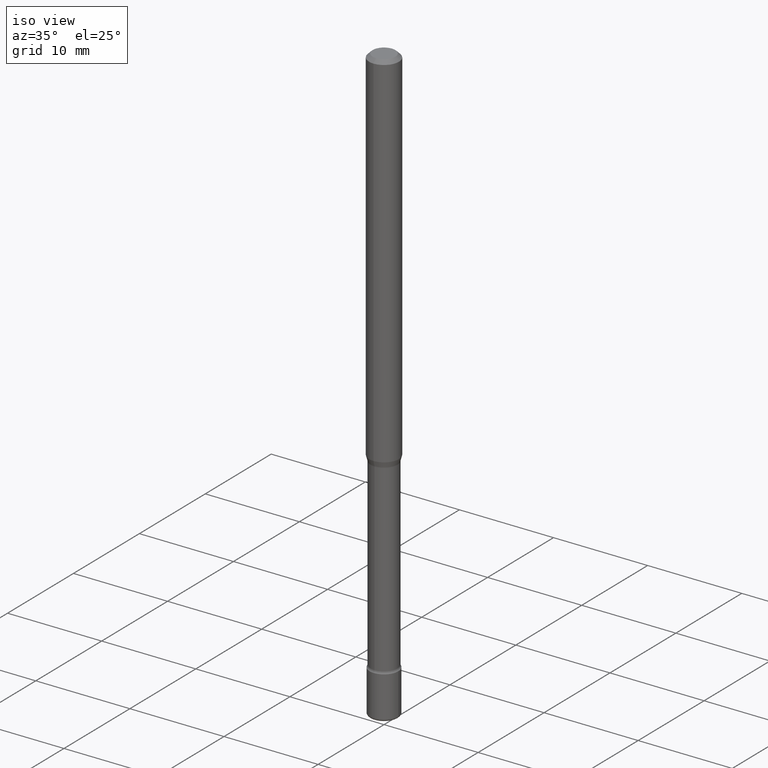
[diagram: clean part render]
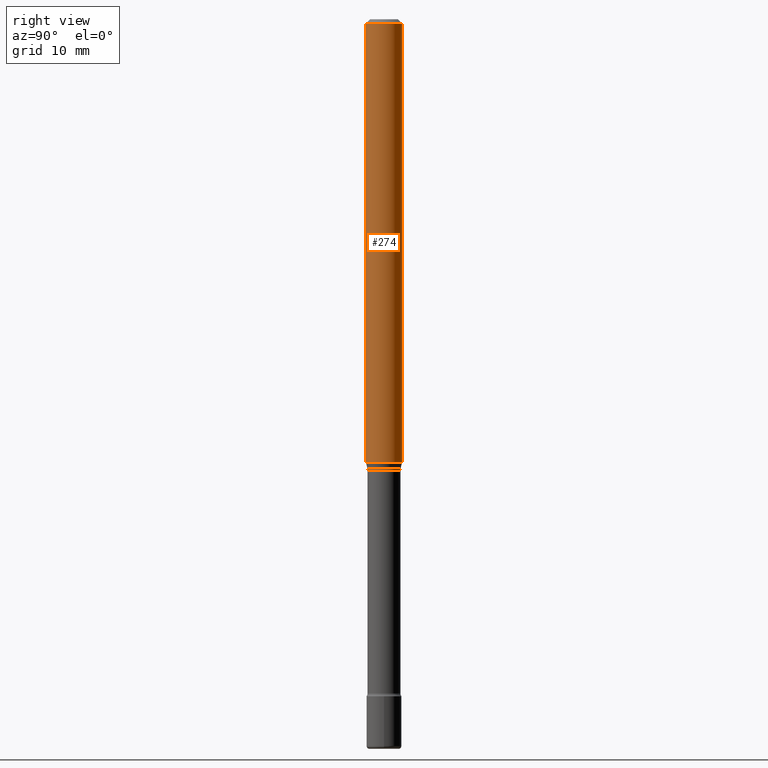
[diagram: tour spotlight — one face highlighted and labeled with its STEP entity id]
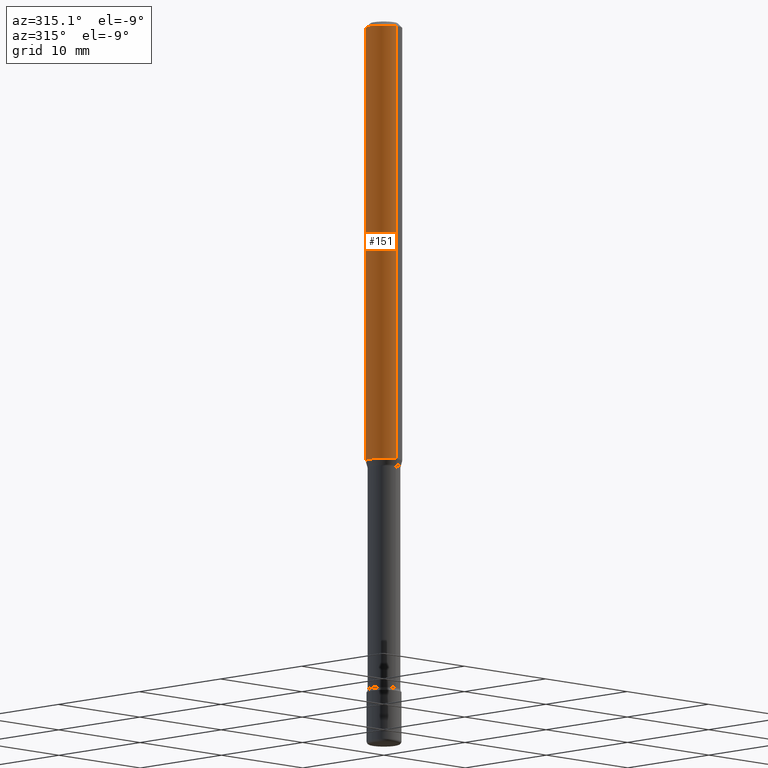
[diagram: tour spotlight — one face highlighted and labeled with its STEP entity id]
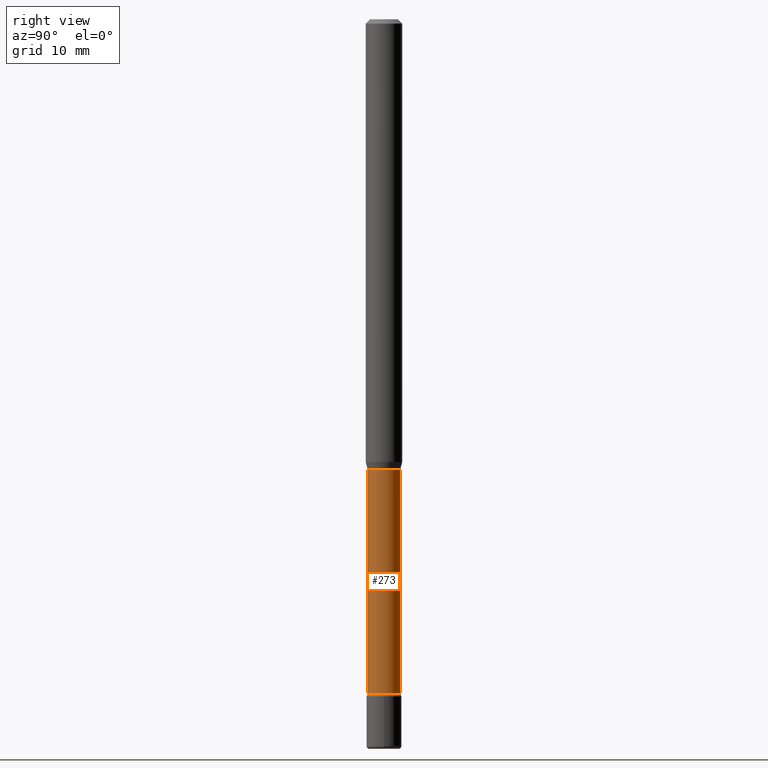
[diagram: tour spotlight — one face highlighted and labeled with its STEP entity id]
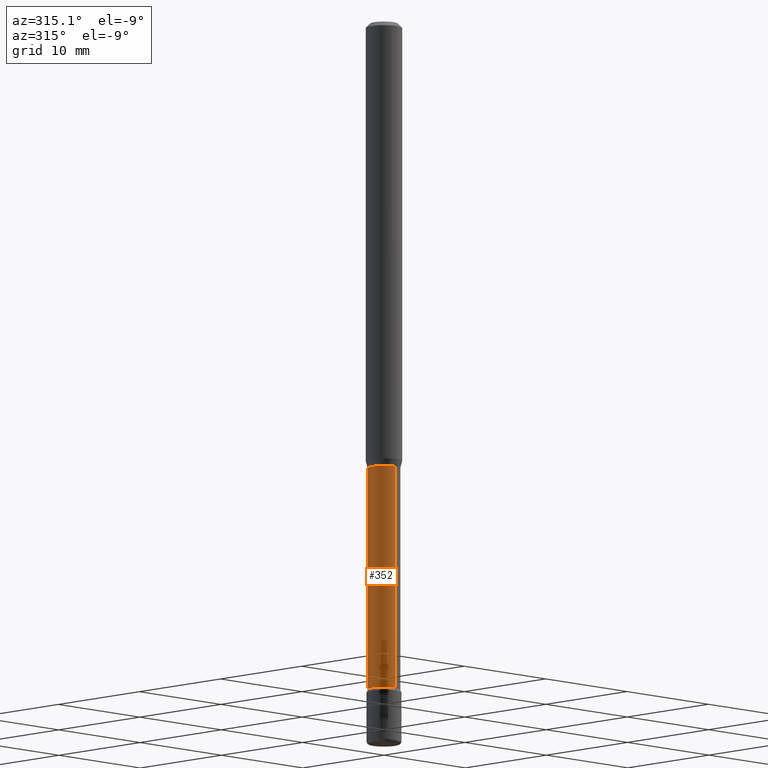
[diagram: tour spotlight — one face highlighted and labeled with its STEP entity id]
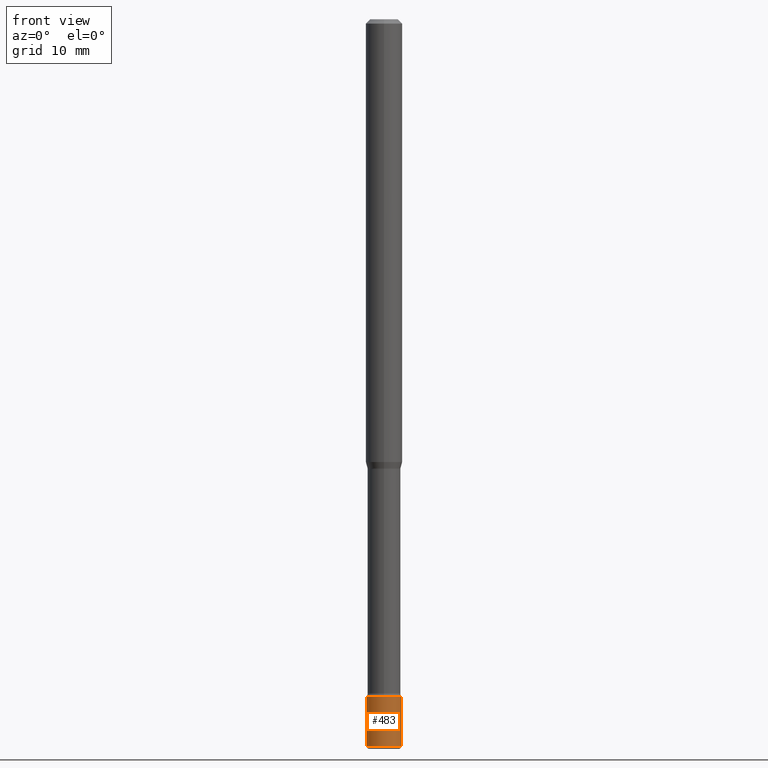
[diagram: tour spotlight — one face highlighted and labeled with its STEP entity id]
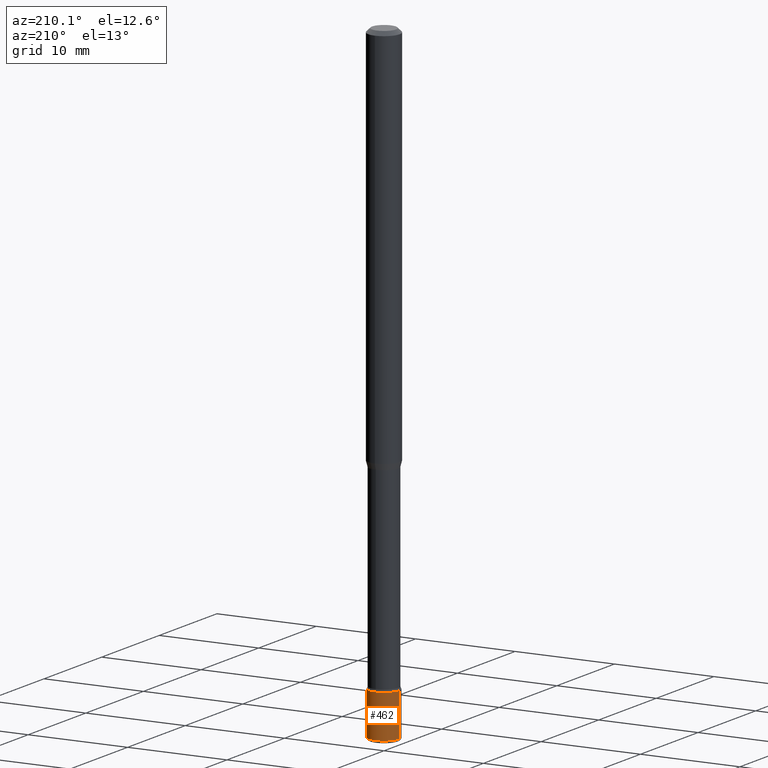
[diagram: tour spotlight — one face highlighted and labeled with its STEP entity id]
A machine part: a face-by-face anatomy tour. The part has 20 B-rep faces; the first image is the clean iso view, then the 6 largest visible faces are spotlighted one at a time (largest first), each with its STEP entity span.

Face 1 — right view, entity #274. In plain terms, the highlighted cylindrical surface (edge-blend (fillet) strip) has radius 1.5875 mm, axis along (-0, 0, 1).
Definition (entity closure, byte-faithful):
#4 = VECTOR ( 'NONE', #547, 39.37007874015748143 ) ;
#10 = DIRECTION ( 'NONE',  ( -6.982962677686265922E-15, -1.000000000000000000, 4.370956789862821150E-15 ) ) ;
#41 = AXIS2_PLACEMENT_3D ( 'NONE', #544, #149, #10 ) ;
#79 = VERTEX_POINT ( 'NONE', #398 ) ;
#88 = DIRECTION ( 'NONE',  ( -2.445374119236681714E-29, 3.491616935942579411E-15, 1.000000000000000000 ) ) ;
#135 = CARTESIAN_POINT ( 'NONE',  ( -4.364351673553916201E-16, -0.06250000000000000000, 6.962994573876572271E-16 ) ) ;
#149 = DIRECTION ( 'NONE',  ( -2.445374119236681714E-29, 3.491616935942579411E-15, 1.000000000000000000 ) ) ;
#168 = DIRECTION ( 'NONE',  ( -6.982962677686265922E-15, -1.000000000000000000, 3.491616935942578228E-15 ) ) ;
#183 = CARTESIAN_POINT ( 'NONE',  ( -4.364351673553544450E-16, -0.06250000000000527356, -1.517234490073829489 ) ) ;
#190 = DIRECTION ( 'NONE',  ( -2.445374119236681994E-29, 3.491616935942579411E-15, 1.000000000000000000 ) ) ;
#204 = ORIENTED_EDGE ( 'NONE', *, *, #416, .F. ) ;
#206 = ORIENTED_EDGE ( 'NONE', *, *, #566, .F. ) ;
#208 = VERTEX_POINT ( 'NONE', #183 ) ;
#220 = CARTESIAN_POINT ( 'NONE',  ( 4.440892098500997912E-16, 0.06249999999999472644, -1.517234490073829933 ) ) ;
#225 = AXIS2_PLACEMENT_3D ( 'NONE', #445, #88, #168 ) ;
#274 = ADVANCED_FACE ( 'NONE', ( #478 ), #534, .T. ) ;
#275 = LINE ( 'NONE', #409, #4 ) ;
#297 = CARTESIAN_POINT ( 'NONE',  ( 4.440892098500998898E-16, 0.06249999999999993755, -0.01500000000000024578 ) ) ;
#331 = CIRCLE ( 'NONE', #41, 0.06250000000000000000 ) ;
#340 = EDGE_CURVE ( 'NONE', #208, #381, #331, .T. ) ;
#341 = DIRECTION ( 'NONE',  ( -2.445374119236681714E-29, 3.491616935942579411E-15, 1.000000000000000000 ) ) ;
#361 = CARTESIAN_POINT ( 'NONE',  ( 3.668061178855029262E-31, -5.237425403913879570E-17, -0.01500000000000002720 ) ) ;
#372 = LINE ( 'NONE', #135, #380 ) ;
#373 = ORIENTED_EDGE ( 'NONE', *, *, #518, .T. ) ;
#380 = VECTOR ( 'NONE', #190, 39.37007874015748143 ) ;
#381 = VERTEX_POINT ( 'NONE', #220 ) ;
#387 = DIRECTION ( 'NONE',  ( -6.982962677686265922E-15, -1.000000000000000000, 3.483106191921935554E-15 ) ) ;
#396 = EDGE_LOOP ( 'NONE', ( #511, #373, #204, #206 ) ) ;
#398 = CARTESIAN_POINT ( 'NONE',  ( -4.364351673553912750E-16, -0.06250000000000005551, -0.01499999999999981036 ) ) ;
#409 = CARTESIAN_POINT ( 'NONE',  ( 4.440892098500625669E-16, 0.06250000000000000000, 2.598473403948348500E-16 ) ) ;
#416 = EDGE_CURVE ( 'NONE', #79, #424, #569, .T. ) ;
#424 = VERTEX_POINT ( 'NONE', #297 ) ;
#445 = CARTESIAN_POINT ( 'NONE',  ( -1.169113584055446105E-44, 1.669184350826100908E-30, 4.780733988912460139E-16 ) ) ;
#478 = FACE_OUTER_BOUND ( 'NONE', #396, .T. ) ;
#511 = ORIENTED_EDGE ( 'NONE', *, *, #340, .T. ) ;
#518 = EDGE_CURVE ( 'NONE', #381, #424, #275, .T. ) ;
#534 = CYLINDRICAL_SURFACE ( 'NONE', #225, 0.06250000000000000000 ) ;
#544 = CARTESIAN_POINT ( 'NONE',  ( 3.710205954839807473E-29, -5.297601641337987414E-15, -1.517234490073829711 ) ) ;
#547 = DIRECTION ( 'NONE',  ( -2.445374119236681994E-29, 3.491616935942579411E-15, 1.000000000000000000 ) ) ;
#561 = AXIS2_PLACEMENT_3D ( 'NONE', #361, #341, #387 ) ;
#566 = EDGE_CURVE ( 'NONE', #208, #79, #372, .T. ) ;
#569 = CIRCLE ( 'NONE', #561, 0.06250000000000000000 ) ;

Face 2 — auxiliary view, entity #151. In plain terms, the highlighted cylindrical surface (edge-blend (fillet) strip) has radius 1.5875 mm, axis along (-0, 0, 1).
Definition (entity closure, byte-faithful):
#4 = VECTOR ( 'NONE', #547, 39.37007874015748143 ) ;
#28 = EDGE_CURVE ( 'NONE', #424, #79, #127, .T. ) ;
#33 = AXIS2_PLACEMENT_3D ( 'NONE', #138, #276, #94 ) ;
#79 = VERTEX_POINT ( 'NONE', #398 ) ;
#93 = ORIENTED_EDGE ( 'NONE', *, *, #28, .F. ) ;
#94 = DIRECTION ( 'NONE',  ( -6.982962677686265922E-15, -1.000000000000000000, 3.491616935942578228E-15 ) ) ;
#95 = CARTESIAN_POINT ( 'NONE',  ( 3.710205954839807473E-29, -5.297601641337987414E-15, -1.517234490073829711 ) ) ;
#102 = DIRECTION ( 'NONE',  ( -6.982962677686265922E-15, -1.000000000000000000, 4.370956789862821150E-15 ) ) ;
#127 = CIRCLE ( 'NONE', #189, 0.06250000000000000000 ) ;
#135 = CARTESIAN_POINT ( 'NONE',  ( -4.364351673553916201E-16, -0.06250000000000000000, 6.962994573876572271E-16 ) ) ;
#138 = CARTESIAN_POINT ( 'NONE',  ( -1.169113584055446105E-44, 1.669184350826100908E-30, 4.780733988912460139E-16 ) ) ;
#145 = CYLINDRICAL_SURFACE ( 'NONE', #33, 0.06250000000000000000 ) ;
#151 = ADVANCED_FACE ( 'NONE', ( #460 ), #145, .T. ) ;
#156 = AXIS2_PLACEMENT_3D ( 'NONE', #95, #279, #102 ) ;
#183 = CARTESIAN_POINT ( 'NONE',  ( -4.364351673553544450E-16, -0.06250000000000527356, -1.517234490073829489 ) ) ;
#189 = AXIS2_PLACEMENT_3D ( 'NONE', #360, #217, #269 ) ;
#190 = DIRECTION ( 'NONE',  ( -2.445374119236681994E-29, 3.491616935942579411E-15, 1.000000000000000000 ) ) ;
#199 = ORIENTED_EDGE ( 'NONE', *, *, #518, .F. ) ;
#208 = VERTEX_POINT ( 'NONE', #183 ) ;
#217 = DIRECTION ( 'NONE',  ( -2.445374119236681714E-29, 3.491616935942579411E-15, 1.000000000000000000 ) ) ;
#220 = CARTESIAN_POINT ( 'NONE',  ( 4.440892098500997912E-16, 0.06249999999999472644, -1.517234490073829933 ) ) ;
#269 = DIRECTION ( 'NONE',  ( -6.982962677686265922E-15, -1.000000000000000000, 3.483106191921935554E-15 ) ) ;
#275 = LINE ( 'NONE', #409, #4 ) ;
#276 = DIRECTION ( 'NONE',  ( -2.445374119236681714E-29, 3.491616935942579411E-15, 1.000000000000000000 ) ) ;
#279 = DIRECTION ( 'NONE',  ( -2.445374119236681714E-29, 3.491616935942579411E-15, 1.000000000000000000 ) ) ;
#297 = CARTESIAN_POINT ( 'NONE',  ( 4.440892098500998898E-16, 0.06249999999999993755, -0.01500000000000024578 ) ) ;
#334 = ORIENTED_EDGE ( 'NONE', *, *, #566, .T. ) ;
#360 = CARTESIAN_POINT ( 'NONE',  ( 3.668061178855029262E-31, -5.237425403913879570E-17, -0.01500000000000002720 ) ) ;
#372 = LINE ( 'NONE', #135, #380 ) ;
#380 = VECTOR ( 'NONE', #190, 39.37007874015748143 ) ;
#381 = VERTEX_POINT ( 'NONE', #220 ) ;
#398 = CARTESIAN_POINT ( 'NONE',  ( -4.364351673553912750E-16, -0.06250000000000005551, -0.01499999999999981036 ) ) ;
#402 = CIRCLE ( 'NONE', #156, 0.06250000000000000000 ) ;
#409 = CARTESIAN_POINT ( 'NONE',  ( 4.440892098500625669E-16, 0.06250000000000000000, 2.598473403948348500E-16 ) ) ;
#418 = ORIENTED_EDGE ( 'NONE', *, *, #524, .T. ) ;
#424 = VERTEX_POINT ( 'NONE', #297 ) ;
#460 = FACE_OUTER_BOUND ( 'NONE', #473, .T. ) ;
#473 = EDGE_LOOP ( 'NONE', ( #199, #418, #334, #93 ) ) ;
#518 = EDGE_CURVE ( 'NONE', #381, #424, #275, .T. ) ;
#524 = EDGE_CURVE ( 'NONE', #381, #208, #402, .T. ) ;
#547 = DIRECTION ( 'NONE',  ( -2.445374119236681994E-29, 3.491616935942579411E-15, 1.000000000000000000 ) ) ;
#566 = EDGE_CURVE ( 'NONE', #208, #79, #372, .T. ) ;

Face 3 — right view, entity #273. In plain terms, the highlighted cylindrical surface (edge-blend (fillet) strip) has radius 1.4326 mm, axis along (-0, 0, 1).
Definition (entity closure, byte-faithful):
#25 = ORIENTED_EDGE ( 'NONE', *, *, #74, .F. ) ;
#26 = DIRECTION ( 'NONE',  ( -6.982962677686265133E-15, -1.000000000000000000, 3.491616935942579411E-15 ) ) ;
#49 = CARTESIAN_POINT ( 'NONE',  ( 4.007461029686965452E-16, 0.05640000000000001262, 2.811462037040845346E-16 ) ) ;
#58 = CARTESIAN_POINT ( 'NONE',  ( 4.135358722124349706E-16, 0.05639999999999196351, -2.310251153914437250 ) ) ;
#66 = EDGE_LOOP ( 'NONE', ( #215, #295, #25, #508 ) ) ;
#74 = EDGE_CURVE ( 'NONE', #516, #300, #479, .T. ) ;
#97 = LINE ( 'NONE', #49, #535 ) ;
#112 = VERTEX_POINT ( 'NONE', #520 ) ;
#125 = DIRECTION ( 'NONE',  ( -2.445374119236681994E-29, 3.491616935942579411E-15, 1.000000000000000000 ) ) ;
#143 = CARTESIAN_POINT ( 'NONE',  ( 5.649428380719043834E-29, -8.066512055288535170E-15, -2.310251153914436806 ) ) ;
#158 = FACE_OUTER_BOUND ( 'NONE', #66, .T. ) ;
#159 = EDGE_CURVE ( 'NONE', #112, #160, #305, .T. ) ;
#160 = VERTEX_POINT ( 'NONE', #58 ) ;
#180 = CARTESIAN_POINT ( 'NONE',  ( -3.938390950215054539E-16, -0.05640000000000001262, 6.750005940784075426E-16 ) ) ;
#185 = DIRECTION ( 'NONE',  ( -6.982962677686265922E-15, -1.000000000000000000, 4.843702116425996063E-15 ) ) ;
#205 = CARTESIAN_POINT ( 'NONE',  ( -1.169113584055446105E-44, 1.669184350826100908E-30, 4.780733988912460139E-16 ) ) ;
#215 = ORIENTED_EDGE ( 'NONE', *, *, #159, .T. ) ;
#226 = DIRECTION ( 'NONE',  ( -2.445374119236681994E-29, 3.491616935942579411E-15, 1.000000000000000000 ) ) ;
#233 = CARTESIAN_POINT ( 'NONE',  ( -3.938390950214675886E-16, -0.05640000000000538333, -1.541974787463810781 ) ) ;
#273 = ADVANCED_FACE ( 'NONE', ( #158 ), #427, .T. ) ;
#280 = EDGE_CURVE ( 'NONE', #112, #516, #394, .T. ) ;
#295 = ORIENTED_EDGE ( 'NONE', *, *, #554, .T. ) ;
#300 = VERTEX_POINT ( 'NONE', #413 ) ;
#301 = AXIS2_PLACEMENT_3D ( 'NONE', #143, #533, #185 ) ;
#305 = CIRCLE ( 'NONE', #301, 0.05640000000000002650 ) ;
#379 = VECTOR ( 'NONE', #125, 39.37007874015748143 ) ;
#382 = DIRECTION ( 'NONE',  ( -2.445374119236681714E-29, 3.491616935942579411E-15, 1.000000000000000000 ) ) ;
#394 = LINE ( 'NONE', #180, #379 ) ;
#413 = CARTESIAN_POINT ( 'NONE',  ( 4.007461029687530474E-16, 0.05639999999999460029, -1.541974787463811225 ) ) ;
#427 = CYLINDRICAL_SURFACE ( 'NONE', #455, 0.05640000000000001262 ) ;
#451 = CARTESIAN_POINT ( 'NONE',  ( 3.770705237779486267E-29, -5.383985282705101280E-15, -1.541974787463811003 ) ) ;
#455 = AXIS2_PLACEMENT_3D ( 'NONE', #205, #382, #26 ) ;
#479 = CIRCLE ( 'NONE', #562, 0.05639999999999999181 ) ;
#484 = DIRECTION ( 'NONE',  ( -6.982962677686265922E-15, -1.000000000000000000, 4.843702116425999219E-15 ) ) ;
#508 = ORIENTED_EDGE ( 'NONE', *, *, #280, .F. ) ;
#516 = VERTEX_POINT ( 'NONE', #233 ) ;
#520 = CARTESIAN_POINT ( 'NONE',  ( -3.938390950214490997E-16, -0.05640000000000809643, -2.310251153914436806 ) ) ;
#522 = DIRECTION ( 'NONE',  ( -2.445374119236681714E-29, 3.491616935942579411E-15, 1.000000000000000000 ) ) ;
#533 = DIRECTION ( 'NONE',  ( -2.445374119236681714E-29, 3.491616935942579411E-15, 1.000000000000000000 ) ) ;
#535 = VECTOR ( 'NONE', #226, 39.37007874015748143 ) ;
#554 = EDGE_CURVE ( 'NONE', #160, #300, #97, .T. ) ;
#562 = AXIS2_PLACEMENT_3D ( 'NONE', #451, #522, #484 ) ;

Face 4 — auxiliary view, entity #352. In plain terms, the highlighted cylindrical surface (edge-blend (fillet) strip) has radius 1.4326 mm, axis along (-0, 0, 1).
Definition (entity closure, byte-faithful):
#9 = DIRECTION ( 'NONE',  ( -2.445374119236681714E-29, 3.491616935942579411E-15, 1.000000000000000000 ) ) ;
#49 = CARTESIAN_POINT ( 'NONE',  ( 4.007461029686965452E-16, 0.05640000000000001262, 2.811462037040845346E-16 ) ) ;
#58 = CARTESIAN_POINT ( 'NONE',  ( 4.135358722124349706E-16, 0.05639999999999196351, -2.310251153914437250 ) ) ;
#59 = CYLINDRICAL_SURFACE ( 'NONE', #422, 0.05640000000000001262 ) ;
#97 = LINE ( 'NONE', #49, #535 ) ;
#100 = CIRCLE ( 'NONE', #285, 0.05639999999999999181 ) ;
#104 = DIRECTION ( 'NONE',  ( -6.982962677686265922E-15, -1.000000000000000000, 4.843702116425999219E-15 ) ) ;
#112 = VERTEX_POINT ( 'NONE', #520 ) ;
#125 = DIRECTION ( 'NONE',  ( -2.445374119236681994E-29, 3.491616935942579411E-15, 1.000000000000000000 ) ) ;
#144 = DIRECTION ( 'NONE',  ( -6.982962677686265133E-15, -1.000000000000000000, 3.491616935942579411E-15 ) ) ;
#160 = VERTEX_POINT ( 'NONE', #58 ) ;
#180 = CARTESIAN_POINT ( 'NONE',  ( -3.938390950215054539E-16, -0.05640000000000001262, 6.750005940784075426E-16 ) ) ;
#209 = CIRCLE ( 'NONE', #492, 0.05640000000000002650 ) ;
#226 = DIRECTION ( 'NONE',  ( -2.445374119236681994E-29, 3.491616935942579411E-15, 1.000000000000000000 ) ) ;
#233 = CARTESIAN_POINT ( 'NONE',  ( -3.938390950214675886E-16, -0.05640000000000538333, -1.541974787463810781 ) ) ;
#236 = CARTESIAN_POINT ( 'NONE',  ( -1.169113584055446105E-44, 1.669184350826100908E-30, 4.780733988912460139E-16 ) ) ;
#265 = DIRECTION ( 'NONE',  ( -6.982962677686265922E-15, -1.000000000000000000, 4.843702116425996063E-15 ) ) ;
#267 = ORIENTED_EDGE ( 'NONE', *, *, #554, .F. ) ;
#280 = EDGE_CURVE ( 'NONE', #112, #516, #394, .T. ) ;
#281 = DIRECTION ( 'NONE',  ( -2.445374119236681714E-29, 3.491616935942579411E-15, 1.000000000000000000 ) ) ;
#283 = FACE_OUTER_BOUND ( 'NONE', #336, .T. ) ;
#285 = AXIS2_PLACEMENT_3D ( 'NONE', #406, #281, #104 ) ;
#296 = ORIENTED_EDGE ( 'NONE', *, *, #320, .F. ) ;
#300 = VERTEX_POINT ( 'NONE', #413 ) ;
#320 = EDGE_CURVE ( 'NONE', #300, #516, #100, .T. ) ;
#327 = ORIENTED_EDGE ( 'NONE', *, *, #375, .T. ) ;
#336 = EDGE_LOOP ( 'NONE', ( #267, #327, #338, #296 ) ) ;
#338 = ORIENTED_EDGE ( 'NONE', *, *, #280, .T. ) ;
#352 = ADVANCED_FACE ( 'NONE', ( #283 ), #59, .T. ) ;
#366 = CARTESIAN_POINT ( 'NONE',  ( 5.649428380719043834E-29, -8.066512055288535170E-15, -2.310251153914436806 ) ) ;
#375 = EDGE_CURVE ( 'NONE', #160, #112, #209, .T. ) ;
#379 = VECTOR ( 'NONE', #125, 39.37007874015748143 ) ;
#394 = LINE ( 'NONE', #180, #379 ) ;
#406 = CARTESIAN_POINT ( 'NONE',  ( 3.770705237779486267E-29, -5.383985282705101280E-15, -1.541974787463811003 ) ) ;
#413 = CARTESIAN_POINT ( 'NONE',  ( 4.007461029687530474E-16, 0.05639999999999460029, -1.541974787463811225 ) ) ;
#422 = AXIS2_PLACEMENT_3D ( 'NONE', #236, #9, #144 ) ;
#482 = DIRECTION ( 'NONE',  ( -2.445374119236681714E-29, 3.491616935942579411E-15, 1.000000000000000000 ) ) ;
#492 = AXIS2_PLACEMENT_3D ( 'NONE', #366, #482, #265 ) ;
#516 = VERTEX_POINT ( 'NONE', #233 ) ;
#520 = CARTESIAN_POINT ( 'NONE',  ( -3.938390950214490997E-16, -0.05640000000000809643, -2.310251153914436806 ) ) ;
#535 = VECTOR ( 'NONE', #226, 39.37007874015748143 ) ;
#554 = EDGE_CURVE ( 'NONE', #160, #300, #97, .T. ) ;

Face 5 — front view, entity #483. In plain terms, the highlighted cylindrical surface (edge-blend (fillet) strip) has radius 1.524 mm, axis along (-0, 0, 1).
Definition (entity closure, byte-faithful):
#2 = EDGE_CURVE ( 'NONE', #443, #77, #262, .T. ) ;
#13 = CYLINDRICAL_SURFACE ( 'NONE', #268, 0.05999999999999999778 ) ;
#23 = AXIS2_PLACEMENT_3D ( 'NONE', #277, #459, #491 ) ;
#36 = CARTESIAN_POINT ( 'NONE',  ( 5.673487630349517039E-29, -8.100236706116098414E-15, -2.320000000000000284 ) ) ;
#46 = EDGE_CURVE ( 'NONE', #77, #392, #176, .T. ) ;
#76 = CARTESIAN_POINT ( 'NONE',  ( 0.06000000000000004635, -9.112766294380608350E-15, -2.489999999999999769 ) ) ;
#77 = VERTEX_POINT ( 'NONE', #430 ) ;
#114 = ORIENTED_EDGE ( 'NONE', *, *, #214, .T. ) ;
#133 = CARTESIAN_POINT ( 'NONE',  ( -0.06000000000000004635, -8.267462892263371226E-15, -2.489999999999999769 ) ) ;
#141 = VECTOR ( 'NONE', #564, 39.37007874015748143 ) ;
#173 = DIRECTION ( 'NONE',  ( -2.445468806185136597E-29, 3.491481338843145583E-15, 1.000000000000000000 ) ) ;
#175 = CARTESIAN_POINT ( 'NONE',  ( 0.05999999999999999778, -8.519214466777275048E-15, -2.320000000000000284 ) ) ;
#176 = CIRCLE ( 'NONE', #500, 0.05999999999999999778 ) ;
#214 = EDGE_CURVE ( 'NONE', #253, #392, #234, .T. ) ;
#222 = DIRECTION ( 'NONE',  ( -2.445468806185136877E-29, 3.491481338843145188E-15, 1.000000000000000000 ) ) ;
#227 = VECTOR ( 'NONE', #222, 39.37007874015748143 ) ;
#234 = LINE ( 'NONE', #536, #227 ) ;
#253 = VERTEX_POINT ( 'NONE', #76 ) ;
#260 = EDGE_LOOP ( 'NONE', ( #448, #515, #114, #374 ) ) ;
#262 = LINE ( 'NONE', #531, #141 ) ;
#268 = AXIS2_PLACEMENT_3D ( 'NONE', #431, #486, #542 ) ;
#277 = CARTESIAN_POINT ( 'NONE',  ( 6.089217327400989947E-29, -8.693788533719431716E-15, -2.489999999999999769 ) ) ;
#278 = CIRCLE ( 'NONE', #23, 0.05999999999999999778 ) ;
#323 = FACE_OUTER_BOUND ( 'NONE', #260, .T. ) ;
#374 = ORIENTED_EDGE ( 'NONE', *, *, #46, .F. ) ;
#392 = VERTEX_POINT ( 'NONE', #175 ) ;
#430 = CARTESIAN_POINT ( 'NONE',  ( -0.05999999999999999778, -7.970686978461704575E-15, -2.320000000000000284 ) ) ;
#431 = CARTESIAN_POINT ( 'NONE',  ( 0.000000000000000000, 0.000000000000000000, 0.000000000000000000 ) ) ;
#443 = VERTEX_POINT ( 'NONE', #133 ) ;
#448 = ORIENTED_EDGE ( 'NONE', *, *, #2, .F. ) ;
#459 = DIRECTION ( 'NONE',  ( -2.445468806185136597E-29, 3.491481338843145583E-15, 1.000000000000000000 ) ) ;
#483 = ADVANCED_FACE ( 'NONE', ( #323 ), #13, .T. ) ;
#486 = DIRECTION ( 'NONE',  ( -2.445468806185136597E-29, 3.491481338843145583E-15, 1.000000000000000000 ) ) ;
#491 = DIRECTION ( 'NONE',  ( 1.000000000000000000, -6.982962677686251722E-15, 0.000000000000000000 ) ) ;
#500 = AXIS2_PLACEMENT_3D ( 'NONE', #36, #173, #571 ) ;
#515 = ORIENTED_EDGE ( 'NONE', *, *, #537, .T. ) ;
#531 = CARTESIAN_POINT ( 'NONE',  ( -0.05999999999999999778, 4.263256414560600957E-16, -2.951361054152943413E-30 ) ) ;
#536 = CARTESIAN_POINT ( 'NONE',  ( 0.05999999999999999778, -4.189777606611760421E-16, 2.925706065477561756E-30 ) ) ;
#537 = EDGE_CURVE ( 'NONE', #443, #253, #278, .T. ) ;
#542 = DIRECTION ( 'NONE',  ( 1.000000000000000000, -6.982962677686267499E-15, 4.876176775795936353E-29 ) ) ;
#564 = DIRECTION ( 'NONE',  ( -2.445468806185136877E-29, 3.491481338843145188E-15, 1.000000000000000000 ) ) ;
#571 = DIRECTION ( 'NONE',  ( 1.000000000000000000, -6.982962677686268288E-15, 0.000000000000000000 ) ) ;

Face 6 — auxiliary view, entity #462. In plain terms, the highlighted cylindrical surface (edge-blend (fillet) strip) has radius 1.524 mm, axis along (-0, 0, 1).
Definition (entity closure, byte-faithful):
#2 = EDGE_CURVE ( 'NONE', #443, #77, #262, .T. ) ;
#76 = CARTESIAN_POINT ( 'NONE',  ( 0.06000000000000004635, -9.112766294380608350E-15, -2.489999999999999769 ) ) ;
#77 = VERTEX_POINT ( 'NONE', #430 ) ;
#82 = FACE_OUTER_BOUND ( 'NONE', #476, .T. ) ;
#86 = EDGE_CURVE ( 'NONE', #253, #443, #248, .T. ) ;
#96 = DIRECTION ( 'NONE',  ( -2.445468806185136597E-29, 3.491481338843145583E-15, 1.000000000000000000 ) ) ;
#132 = CARTESIAN_POINT ( 'NONE',  ( 6.089217327400989947E-29, -8.693788533719431716E-15, -2.489999999999999769 ) ) ;
#133 = CARTESIAN_POINT ( 'NONE',  ( -0.06000000000000004635, -8.267462892263371226E-15, -2.489999999999999769 ) ) ;
#141 = VECTOR ( 'NONE', #564, 39.37007874015748143 ) ;
#174 = DIRECTION ( 'NONE',  ( -2.445468806185136597E-29, 3.491481338843145583E-15, 1.000000000000000000 ) ) ;
#175 = CARTESIAN_POINT ( 'NONE',  ( 0.05999999999999999778, -8.519214466777275048E-15, -2.320000000000000284 ) ) ;
#198 = ORIENTED_EDGE ( 'NONE', *, *, #86, .T. ) ;
#214 = EDGE_CURVE ( 'NONE', #253, #392, #234, .T. ) ;
#222 = DIRECTION ( 'NONE',  ( -2.445468806185136877E-29, 3.491481338843145188E-15, 1.000000000000000000 ) ) ;
#227 = VECTOR ( 'NONE', #222, 39.37007874015748143 ) ;
#229 = CARTESIAN_POINT ( 'NONE',  ( 5.673487630349517039E-29, -8.100236706116098414E-15, -2.320000000000000284 ) ) ;
#234 = LINE ( 'NONE', #536, #227 ) ;
#238 = DIRECTION ( 'NONE',  ( 1.000000000000000000, -6.982962677686268288E-15, 0.000000000000000000 ) ) ;
#241 = ORIENTED_EDGE ( 'NONE', *, *, #497, .F. ) ;
#248 = CIRCLE ( 'NONE', #314, 0.05999999999999999778 ) ;
#253 = VERTEX_POINT ( 'NONE', #76 ) ;
#256 = CIRCLE ( 'NONE', #523, 0.05999999999999999778 ) ;
#259 = CYLINDRICAL_SURFACE ( 'NONE', #449, 0.05999999999999999778 ) ;
#262 = LINE ( 'NONE', #531, #141 ) ;
#314 = AXIS2_PLACEMENT_3D ( 'NONE', #132, #489, #474 ) ;
#392 = VERTEX_POINT ( 'NONE', #175 ) ;
#415 = ORIENTED_EDGE ( 'NONE', *, *, #214, .F. ) ;
#430 = CARTESIAN_POINT ( 'NONE',  ( -0.05999999999999999778, -7.970686978461704575E-15, -2.320000000000000284 ) ) ;
#443 = VERTEX_POINT ( 'NONE', #133 ) ;
#444 = DIRECTION ( 'NONE',  ( 1.000000000000000000, -6.982962677686267499E-15, 4.876176775795936353E-29 ) ) ;
#449 = AXIS2_PLACEMENT_3D ( 'NONE', #567, #174, #444 ) ;
#462 = ADVANCED_FACE ( 'NONE', ( #82 ), #259, .T. ) ;
#474 = DIRECTION ( 'NONE',  ( 1.000000000000000000, -6.982962677686251722E-15, 0.000000000000000000 ) ) ;
#476 = EDGE_LOOP ( 'NONE', ( #198, #556, #241, #415 ) ) ;
#489 = DIRECTION ( 'NONE',  ( -2.445468806185136597E-29, 3.491481338843145583E-15, 1.000000000000000000 ) ) ;
#497 = EDGE_CURVE ( 'NONE', #392, #77, #256, .T. ) ;
#523 = AXIS2_PLACEMENT_3D ( 'NONE', #229, #96, #238 ) ;
#531 = CARTESIAN_POINT ( 'NONE',  ( -0.05999999999999999778, 4.263256414560600957E-16, -2.951361054152943413E-30 ) ) ;
#536 = CARTESIAN_POINT ( 'NONE',  ( 0.05999999999999999778, -4.189777606611760421E-16, 2.925706065477561756E-30 ) ) ;
#556 = ORIENTED_EDGE ( 'NONE', *, *, #2, .T. ) ;
#564 = DIRECTION ( 'NONE',  ( -2.445468806185136877E-29, 3.491481338843145188E-15, 1.000000000000000000 ) ) ;
#567 = CARTESIAN_POINT ( 'NONE',  ( 0.000000000000000000, 0.000000000000000000, 0.000000000000000000 ) ) ;